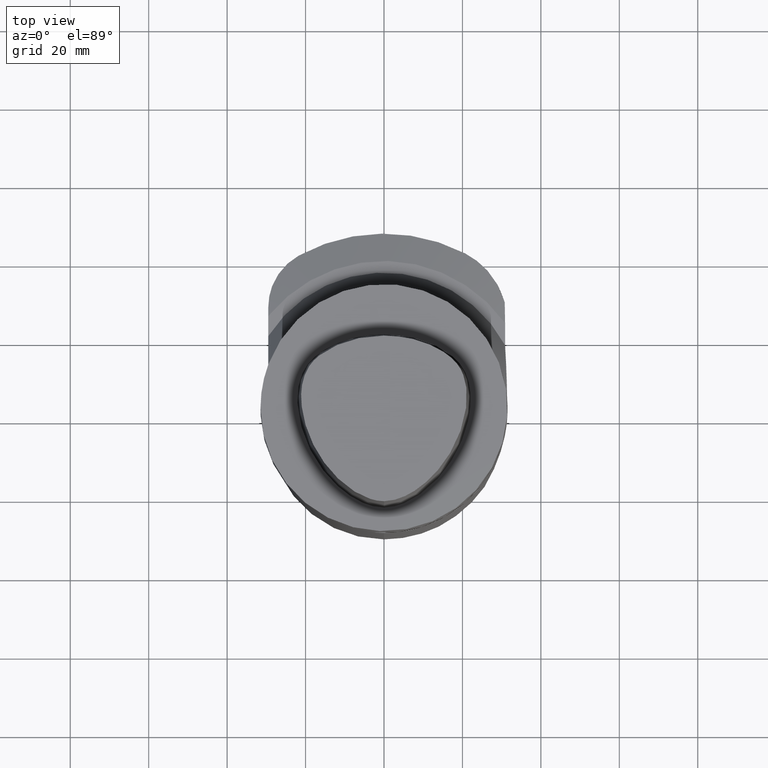
[diagram: clean part render]
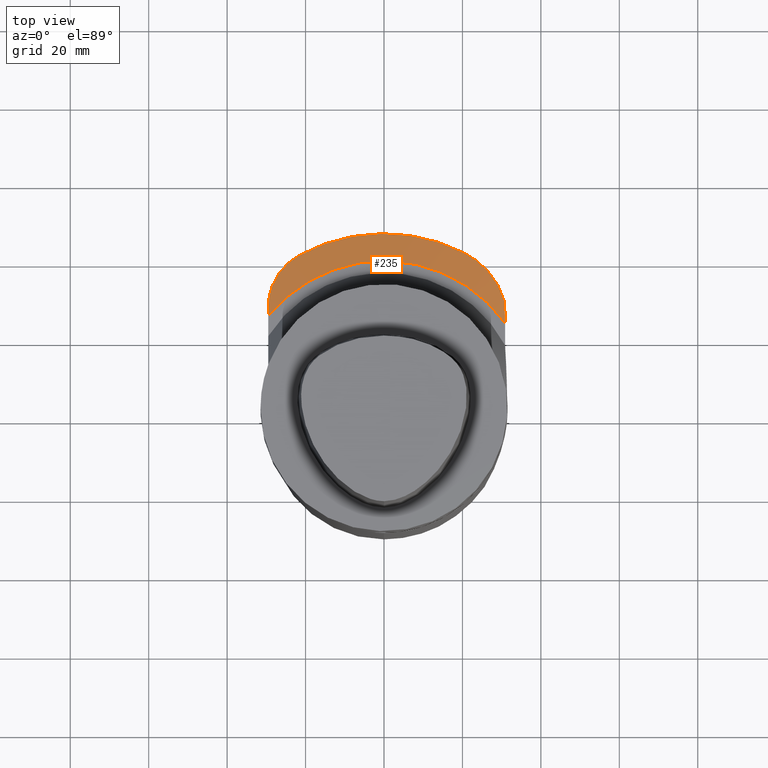
[diagram: same view with one face highlighted and labeled with its STEP entity id]
A machine part, top view. The second image highlights one B-rep face of the part: STEP entity #235.
In plain terms, the highlighted conical surface has half-angle 70 deg.
Its self-contained STEP definition (entity closure, byte-faithful):
#139=EDGE_CURVE('240[2]',#370,#347,#371,.T.);
#194=EDGE_CURVE('240[2]',#363,#448,#449,.T.);
#209=EDGE_CURVE('240[2]',#427,#347,#467,.T.);
#215=EDGE_CURVE('240[2]',#370,#363,#474,.T.);
#235=ADVANCED_FACE('240[2]',(#499),#500,.T.);
#248=EDGE_CURVE('240[2]',#430,#427,#515,.T.);
#298=EDGE_CURVE('240[2]',#448,#430,#575,.T.);
#347=VERTEX_POINT('',#640);
#363=VERTEX_POINT('',#661);
#370=VERTEX_POINT('',#670);
#371=CIRCLE('',#671,38.0000000000027);
#427=VERTEX_POINT('',#764);
#430=VERTEX_POINT('',#769);
#448=VERTEX_POINT('',#814);
#449=B_SPLINE_CURVE_WITH_KNOTS('',3,(#815,#816,#817,#818,#819,#820,#821,#822,#823,#824,#825,#826),.UNSPECIFIED.,.F.,.F.,(4,2,2,2,2,4),(10.1958603050907,13.2037248161847,16.4181363730868,19.6325479299889,22.846959486891,26.0613710437931),.UNSPECIFIED.);
#467=(B_SPLINE_CURVE(2,(#860,#861,#862),.UNSPECIFIED.,.F.,.F.)B_SPLINE_CURVE_WITH_KNOTS((3,3),(7.80902341810396,10.3476978630267),.UNSPECIFIED.)RATIONAL_B_SPLINE_CURVE((1.00273289031817,1.00181066964402,1.0))BOUNDED_CURVE()REPRESENTATION_ITEM('')GEOMETRIC_REPRESENTATION_ITEM()CURVE());
#474=(B_SPLINE_CURVE(2,(#889,#890,#891),.UNSPECIFIED.,.F.,.F.)B_SPLINE_CURVE_WITH_KNOTS((3,3),(3.99175007494467E-012,5.70961012083203),.UNSPECIFIED.)RATIONAL_B_SPLINE_CURVE((1.0,1.004223673315,1.00408316679401))BOUNDED_CURVE()REPRESENTATION_ITEM('')GEOMETRIC_REPRESENTATION_ITEM()CURVE());
#499=FACE_OUTER_BOUND('',#1002,.T.);
#500=CONICAL_SURFACE('',#1003,41.5000000000013,1.22173047639604);
#515=B_SPLINE_CURVE_WITH_KNOTS('',3,(#1042,#1043,#1044,#1045,#1046,#1047,#1048,#1049,#1050,#1051,#1052,#1053,#1054,#1055),.UNSPECIFIED.,.F.,.F.,(4,2,2,2,2,2,4),(20.9973746455924,23.5692716117923,26.1411685779921,28.7130655441919,31.2849625103918,33.96240920559,36.450862750269),.UNSPECIFIED.);
#575=CIRCLE('',#1226,44.9999999999999);
#640=CARTESIAN_POINT('',(-29.4999999999997,25.9530791340118,-32.9999998151458));
#661=CARTESIAN_POINT('',(30.7873370053103,29.4893461661661,-34.191555453672));
#670=CARTESIAN_POINT('',(30.8706586925077,24.1585746809427,-32.9999998151458));
#671=AXIS2_PLACEMENT_3D('',#1280,#1281,#1282);
#764=CARTESIAN_POINT('',(-29.4999999999997,28.263091973338,-33.5448033158629));
#769=CARTESIAN_POINT('',(-21.7499999999998,41.3946379600069,-35.5477914550081));
#814=CARTESIAN_POINT('',(20.7000000000008,41.9563511847621,-35.5477914550084));
#815=CARTESIAN_POINT('',(30.787309271668,29.4893391586681,-34.191551843872));
#816=CARTESIAN_POINT('',(30.5118238686528,30.4928298941378,-34.3600526882046));
#817=CARTESIAN_POINT('',(30.1613457885001,31.4603339052903,-34.5110816359745));
#818=CARTESIAN_POINT('',(29.3215523459816,33.3369167185307,-34.7850189233933));
#819=CARTESIAN_POINT('',(28.7915966988933,34.3106131441656,-34.9159036063427));
#820=CARTESIAN_POINT('',(27.5488679145143,36.1854099776824,-35.1441318249864));
#821=CARTESIAN_POINT('',(26.836117557228,37.0865200751777,-35.2415198015657));
#822=CARTESIAN_POINT('',(25.2649187219632,38.7526340891577,-35.3966796740192));
#823=CARTESIAN_POINT('',(24.4054770089886,39.5186797330898,-35.4545682196224));
#824=CARTESIAN_POINT('',(22.5987203850591,40.8741175520507,-35.5301275837307));
#825=CARTESIAN_POINT('',(21.6513789408892,41.4634747460371,-35.5477914550083));
#826=CARTESIAN_POINT('',(20.7000000000008,41.9563511847621,-35.5477914550084));
#860=CARTESIAN_POINT('',(-29.4999999999997,28.263091973338,-33.5448033158629));
#861=CARTESIAN_POINT('',(-29.4999999999997,27.0857768440046,-33.2598707108632));
#862=CARTESIAN_POINT('',(-29.4999999999997,25.9530791340112,-32.9999998151457));
#889=CARTESIAN_POINT('',(30.8706586925077,24.1585746809421,-32.9999998151457));
#890=CARTESIAN_POINT('',(30.8334710360308,26.7160944565173,-33.5318080792918));
#891=CARTESIAN_POINT('',(30.7873370054479,29.4893461661535,-34.1915554537348));
#1002=EDGE_LOOP('',(#1412,#1413,#1414,#1415,#1416,#1417));
#1003=AXIS2_PLACEMENT_3D('',#1418,#1419,#1420);
#1042=CARTESIAN_POINT('',(-21.7499999999998,41.3946379600069,-35.5477914550081));
#1043=CARTESIAN_POINT('',(-22.5005107396582,40.9802767821191,-35.5477914550081));
#1044=CARTESIAN_POINT('',(-23.2420160887207,40.4855444811457,-35.5296979421733));
#1045=CARTESIAN_POINT('',(-24.6417065986044,39.351688722657,-35.4527310445508));
#1046=CARTESIAN_POINT('',(-25.2999243132128,38.7126048118259,-35.393867088097));
#1047=CARTESIAN_POINT('',(-26.4856523085751,37.3281249408024,-35.2366016664237));
#1048=CARTESIAN_POINT('',(-27.0140175305514,36.5817447800543,-35.1380682271849));
#1049=CARTESIAN_POINT('',(-27.9141980900016,35.0350864268983,-34.9077143903142));
#1050=CARTESIAN_POINT('',(-28.2859868119901,34.234799634273,-34.7758477316175));
#1051=CARTESIAN_POINT('',(-28.8816682724347,32.6153569403013,-34.485497463631));
#1052=CARTESIAN_POINT('',(-29.1215294429532,31.7352322251922,-34.3151762120684));
#1053=CARTESIAN_POINT('',(-29.4249720215719,29.9879182267493,-33.9476639888106));
#1054=CARTESIAN_POINT('',(-29.4998622149782,29.1242176615687,-33.7531898964707));
#1055=CARTESIAN_POINT('',(-29.4999848783955,28.26309252926,-33.5448010097216));
#1226=AXIS2_PLACEMENT_3D('',#1527,#1528,#1529);
#1280=CARTESIAN_POINT('',(-1.77573784744458E-015,2.00000000000028,-32.9999998151459));
#1281=DIRECTION('',(6.12323399573674E-017,-2.95655383322482E-015,1.0));
#1282=DIRECTION('',(1.22464679914735E-016,1.0,2.95655383322482E-015));
#1412=ORIENTED_EDGE('',*,*,#215,.T.);
#1413=ORIENTED_EDGE('',*,*,#194,.T.);
#1414=ORIENTED_EDGE('',*,*,#298,.T.);
#1415=ORIENTED_EDGE('',*,*,#248,.T.);
#1416=ORIENTED_EDGE('',*,*,#209,.T.);
#1417=ORIENTED_EDGE('',*,*,#139,.F.);
#1418=CARTESIAN_POINT('',(-1.85374146936088E-015,2.00000000000028,-34.2738956350771));
#1419=DIRECTION('',(-6.12323399573673E-017,2.95655383322482E-015,-1.0));
#1420=DIRECTION('',(1.22464679914735E-016,1.0,2.95655383322482E-015));
#1527=CARTESIAN_POINT('',(-1.93174509127717E-015,2.00000000000028,-35.5477914550082));
#1528=DIRECTION('',(6.12323399573672E-017,-2.95655383322482E-015,1.0));
#1529=DIRECTION('',(1.22464679914735E-016,1.0,2.95655383322482E-015));